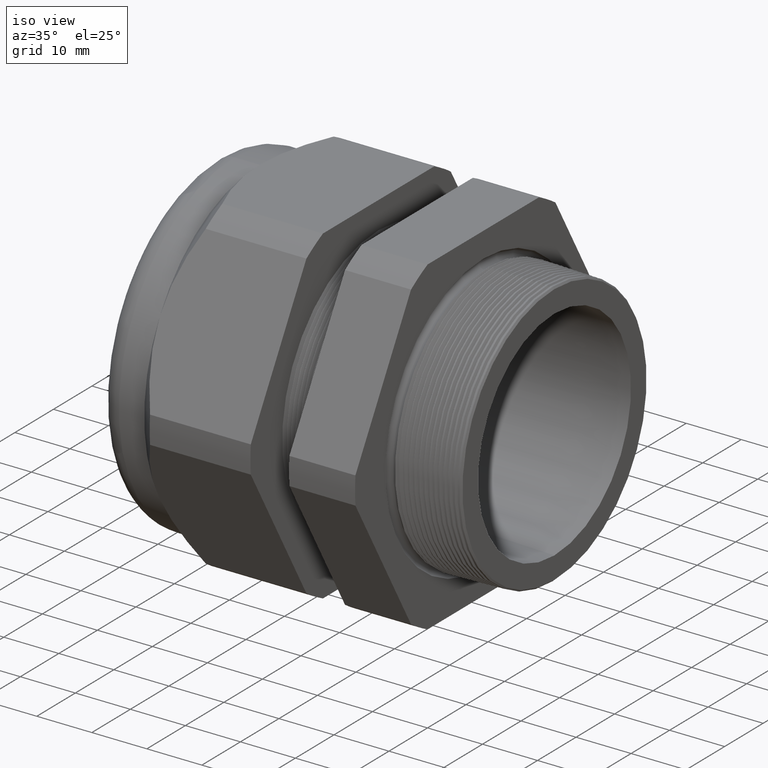
[diagram: clean part render]
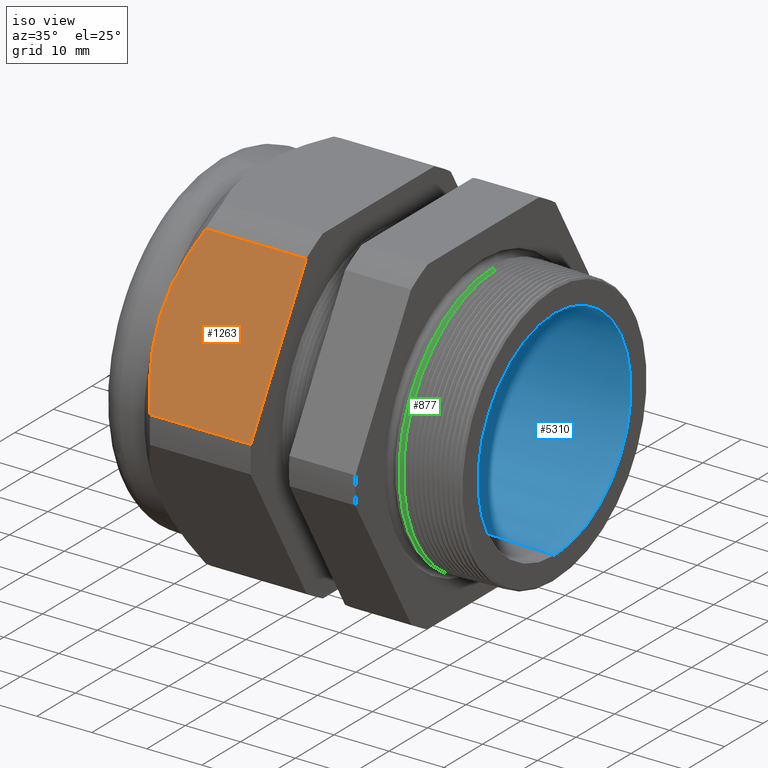
[diagram: same view with three faces highlighted in distinct colors, each labeled with its STEP entity id]
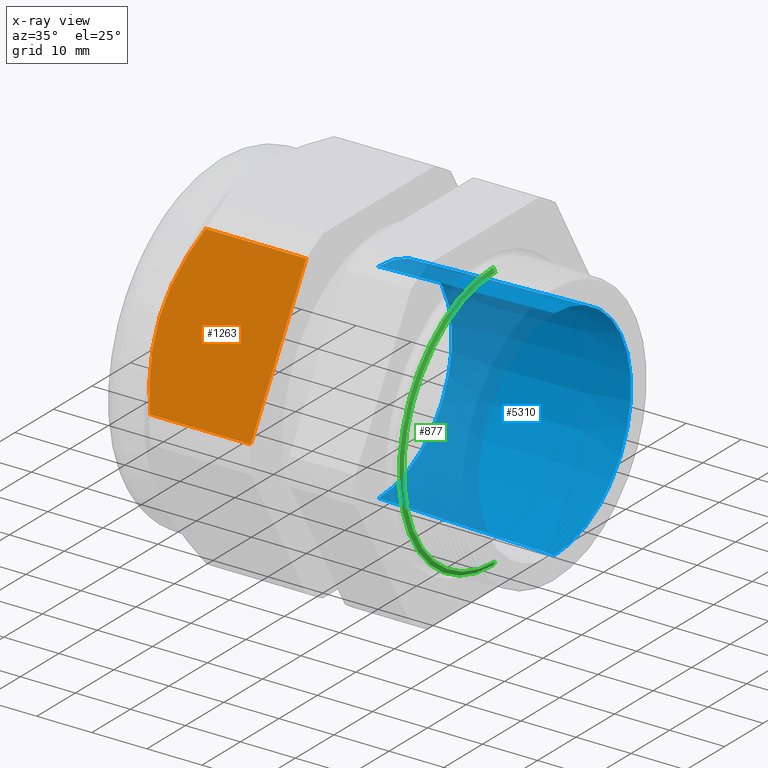
[diagram: x-ray of the same camera — body ghosted, the three highlighted faces saturated]
A machine part, iso view with three faces highlighted in distinct colors.
The next image is the same camera in x-ray (body ghosted, the three faces saturated) — at least one of them is partly hidden behind the body in this view.
Their STEP definitions:

[orange] entity #1263 — the highlighted planar face has unit normal (0, -0.866, 0.5).
#1010 = EDGE_CURVE ( 'NONE', #1265, #1014, #2934, .T. ) ;
#1011 = ORIENTED_EDGE ( 'NONE', *, *, #1010, .F. ) ;
#1013 = ORIENTED_EDGE ( 'NONE', *, *, #1018, .F. ) ;
#1014 = VERTEX_POINT ( 'NONE', #2978 ) ;
#1015 = VERTEX_POINT ( 'NONE', #2977 ) ;
#1016 = ORIENTED_EDGE ( 'NONE', *, *, #1023, .T. ) ;
#1017 = VERTEX_POINT ( 'NONE', #2976 ) ;
#1018 = EDGE_CURVE ( 'NONE', #1014, #1015, #2975, .T. ) ;
#1023 = EDGE_CURVE ( 'NONE', #1017, #1015, #2971, .T. ) ;
#1025 = ORIENTED_EDGE ( 'NONE', *, *, #1026, .T. ) ;
#1026 = EDGE_CURVE ( 'NONE', #1252, #1017, #2961, .T. ) ;
#1027 = ORIENTED_EDGE ( 'NONE', *, *, #1271, .T. ) ;
#1198 = EDGE_LOOP ( 'NONE', ( #1027, #1025, #1016, #1013, #1011 ) ) ;
#1252 = VERTEX_POINT ( 'NONE', #3441 ) ;
#1263 = ADVANCED_FACE ( 'NONE', ( #3415 ), #3414, .T. ) ;
#1265 = VERTEX_POINT ( 'NONE', #3474 ) ;
#1271 = EDGE_CURVE ( 'NONE', #1265, #1252, #3457, .T. ) ;
#2928 = DIRECTION ( 'NONE',  ( 0.0000000000000000000, -0.4999999999999995600, -0.8660254037844389300 ) ) ;
#2929 = VECTOR ( 'NONE', #2928, 39.37007874015748100 ) ;
#2930 = CARTESIAN_POINT ( 'NONE',  ( -1.058802799999999400, -0.7756599764656383300, 1.016517511363835200 ) ) ;
#2934 = LINE ( 'NONE', #2930, #2929 ) ;
#2956 = CARTESIAN_POINT ( 'NONE',  ( -1.851187505985919700, -0.8289513709329576800, 0.9242141085402430000 ) ) ;
#2957 = CARTESIAN_POINT ( 'NONE',  ( -1.818743475994756300, -0.7828851107711118900, 1.004003211655245100 ) ) ;
#2958 = CARTESIAN_POINT ( 'NONE',  ( -1.779491999999999600, -0.7376671049631140500, 1.082323095131642500 ) ) ;
#2961 = B_SPLINE_CURVE_WITH_KNOTS ( 'NONE', 3,
 ( #2958, #2957, #2956, #3016, #3015, #3014, #3013, #3012, #3011, #3010 ),
 .UNSPECIFIED., .F., .F.,
 ( 4, 2, 2, 2, 4 ),
 ( 2.483246384228998700E-007, 0.007410219950490975000, 0.01111520576341725600, 0.01296769866988039200, 0.01482019157634352800 ),
 .UNSPECIFIED. ) ;
#2963 = CARTESIAN_POINT ( 'NONE',  ( -1.779492000000000300, -1.306152847968160800, 0.09767690486835672900 ) ) ;
#2964 = CARTESIAN_POINT ( 'NONE',  ( -1.799142024126190600, -1.283515867254771100, 0.1368853055939044400 ) ) ;
#2965 = CARTESIAN_POINT ( 'NONE',  ( -1.817185162014756100, -1.260539715777235100, 0.1766811673153955700 ) ) ;
#2966 = CARTESIAN_POINT ( 'NONE',  ( -1.849171828712719000, -1.213885783483384500, 0.2574881484212234200 ) ) ;
#2967 = CARTESIAN_POINT ( 'NONE',  ( -1.862989026242973100, -1.190386845346794500, 0.2981895031977150900 ) ) ;
#2968 = CARTESIAN_POINT ( 'NONE',  ( -1.896875206165113300, -1.119292164269853200, 0.4213291029708837700 ) ) ;
#2969 = CARTESIAN_POINT ( 'NONE',  ( -1.909291999999999500, -1.071091697083840400, 0.5048147610856137400 ) ) ;
#2970 = CARTESIAN_POINT ( 'NONE',  ( -1.909291999999999500, -1.021909976465637600, 0.5899999999999993000 ) ) ;
#2971 = B_SPLINE_CURVE_WITH_KNOTS ( 'NONE', 3,
 ( #2970, #2969, #2968, #2967, #2966, #2965, #2964, #2963 ),
 .UNSPECIFIED., .F., .F.,
 ( 4, 2, 2, 4 ),
 ( 0.01482019157634352800, 0.02222508228781098400, 0.02592752764354470200, 0.02962997299927842800 ),
 .UNSPECIFIED. ) ;
#2972 = DIRECTION ( 'NONE',  ( -1.000000000000000000, 0.0000000000000000000, 0.0000000000000000000 ) ) ;
#2973 = VECTOR ( 'NONE', #2972, 39.37007874015748100 ) ;
#2974 = CARTESIAN_POINT ( 'NONE',  ( 0.2000000000000000400, -1.306152847968161000, 0.09767690486835674300 ) ) ;
#2975 = LINE ( 'NONE', #2974, #2973 ) ;
#2976 = CARTESIAN_POINT ( 'NONE',  ( -1.909291999999999500, -1.021909976465637600, 0.5899999999999993000 ) ) ;
#2977 = CARTESIAN_POINT ( 'NONE',  ( -1.779492000000000300, -1.306152847968160800, 0.09767690486835672900 ) ) ;
#2978 = CARTESIAN_POINT ( 'NONE',  ( -1.058802799999999400, -1.306152847968161000, 0.09767690486835674300 ) ) ;
#3010 = CARTESIAN_POINT ( 'NONE',  ( -1.909291999999999500, -1.021909976465637600, 0.5899999999999993000 ) ) ;
#3011 = CARTESIAN_POINT ( 'NONE',  ( -1.909292000000000700, -1.009606109720950100, 0.6113109223313559800 ) ) ;
#3012 = CARTESIAN_POINT ( 'NONE',  ( -1.908513362268125000, -0.9971897060428769300, 0.6328167643490634200 ) ) ;
#3013 = CARTESIAN_POINT ( 'NONE',  ( -1.905420772962690900, -0.9725205596792974000, 0.6755449792301363400 ) ) ;
#3014 = CARTESIAN_POINT ( 'NONE',  ( -1.903116933607496700, -0.9602803817511420500, 0.6967455892953847700 ) ) ;
#3015 = CARTESIAN_POINT ( 'NONE',  ( -1.894069948313096500, -0.9238259417959003800, 0.7598865314593309400 ) ) ;
#3016 = CARTESIAN_POINT ( 'NONE',  ( -1.885190669446346500, -0.8998778565486572600, 0.8013658318515464200 ) ) ;
#3413 = AXIS2_PLACEMENT_3D ( 'NONE', #3477, #3476, #3475 ) ;
#3414 = PLANE ( 'NONE',  #3413 ) ;
#3415 = FACE_OUTER_BOUND ( 'NONE', #1198, .T. ) ;
#3441 = CARTESIAN_POINT ( 'NONE',  ( -1.779491999999999600, -0.7376671049631140500, 1.082323095131642500 ) ) ;
#3454 = DIRECTION ( 'NONE',  ( -1.000000000000000000, 0.0000000000000000000, 0.0000000000000000000 ) ) ;
#3455 = VECTOR ( 'NONE', #3454, 39.37007874015748100 ) ;
#3456 = CARTESIAN_POINT ( 'NONE',  ( 0.2000000000000000400, -0.7376671049631140500, 1.082323095131642500 ) ) ;
#3457 = LINE ( 'NONE', #3456, #3455 ) ;
#3474 = CARTESIAN_POINT ( 'NONE',  ( -1.058802799999999400, -0.7376671049631140500, 1.082323095131642500 ) ) ;
#3475 = DIRECTION ( 'NONE',  ( 0.0000000000000000000, -0.4999999999999995600, -0.8660254037844389300 ) ) ;
#3476 = DIRECTION ( 'NONE',  ( 0.0000000000000000000, -0.8660254037844389300, 0.4999999999999995600 ) ) ;
#3477 = CARTESIAN_POINT ( 'NONE',  ( 0.2000000000000000400, -1.306152847968161000, 0.09767690486835657600 ) ) ;

[blue] entity #5310 — the highlighted conical surface has half-angle 1.458 deg.
#463 = EDGE_CURVE ( 'NONE', #483, #464, #2437, .T. ) ;
#464 = VERTEX_POINT ( 'NONE', #2428 ) ;
#467 = VERTEX_POINT ( 'NONE', #2422 ) ;
#469 = EDGE_CURVE ( 'NONE', #486, #467, #2421, .T. ) ;
#483 = VERTEX_POINT ( 'NONE', #2459 ) ;
#486 = VERTEX_POINT ( 'NONE', #2453 ) ;
#2418 = DIRECTION ( 'NONE',  ( 0.9996762947271695700, 0.0000000000000000000, -0.02544220431796574000 ) ) ;
#2419 = VECTOR ( 'NONE', #2418, 39.37007874015748100 ) ;
#2420 = CARTESIAN_POINT ( 'NONE',  ( -1.058802799999999400, 0.0000000000000000000, -0.7500000000000001100 ) ) ;
#2421 = LINE ( 'NONE', #2420, #2419 ) ;
#2422 = CARTESIAN_POINT ( 'NONE',  ( 0.2000000000000000400, 0.0000000000000000000, -0.7820370886081360300 ) ) ;
#2428 = CARTESIAN_POINT ( 'NONE',  ( 0.2000000000000000400, 9.577192173784689300E-017, 0.7820370886081360300 ) ) ;
#2429 = DIRECTION ( 'NONE',  ( 0.9996762947271695700, 3.115771408124971500E-018, 0.02544220431796574000 ) ) ;
#2430 = VECTOR ( 'NONE', #2429, 39.37007874015748100 ) ;
#2431 = CARTESIAN_POINT ( 'NONE',  ( -1.058802799999999400, 9.184850993605150900E-017, 0.7500000000000001100 ) ) ;
#2437 = LINE ( 'NONE', #2431, #2430 ) ;
#2453 = CARTESIAN_POINT ( 'NONE',  ( -1.058802799999999400, 0.0000000000000000000, -0.7500000000000001100 ) ) ;
#2459 = CARTESIAN_POINT ( 'NONE',  ( -1.058802799999999400, 9.381021583694917600E-017, 0.7500000000000001100 ) ) ;
#4791 = DIRECTION ( 'NONE',  ( 1.000000000000000000, 0.0000000000000000000, 0.0000000000000000000 ) ) ;
#4792 = CARTESIAN_POINT ( 'NONE',  ( 0.2000000000000000400, 0.0000000000000000000, 0.0000000000000000000 ) ) ;
#4793 = AXIS2_PLACEMENT_3D ( 'NONE', #4792, #4791, #4853 ) ;
#4794 = CIRCLE ( 'NONE', #4793, 0.7820370886081360300 ) ;
#4853 = DIRECTION ( 'NONE',  ( 0.0000000000000000000, 0.0000000000000000000, -1.000000000000000000 ) ) ;
#4952 = DIRECTION ( 'NONE',  ( 0.0000000000000000000, 0.0000000000000000000, -1.000000000000000000 ) ) ;
#4953 = DIRECTION ( 'NONE',  ( 1.000000000000000000, 0.0000000000000000000, 0.0000000000000000000 ) ) ;
#4954 = CARTESIAN_POINT ( 'NONE',  ( -1.058802799999999400, 0.0000000000000000000, 0.0000000000000000000 ) ) ;
#4955 = AXIS2_PLACEMENT_3D ( 'NONE', #4954, #4953, #4952 ) ;
#4957 = CONICAL_SURFACE ( 'NONE', #4955, 0.7500000000000001100, 0.02544494993204031400 ) ;
#4958 = FACE_OUTER_BOUND ( 'NONE', #5211, .T. ) ;
#4959 = DIRECTION ( 'NONE',  ( 0.0000000000000000000, 0.0000000000000000000, -1.000000000000000000 ) ) ;
#4960 = DIRECTION ( 'NONE',  ( 1.000000000000000000, 0.0000000000000000000, 0.0000000000000000000 ) ) ;
#4961 = AXIS2_PLACEMENT_3D ( 'NONE', #4968, #4960, #4959 ) ;
#4962 = CIRCLE ( 'NONE', #4961, 0.7500000000000001100 ) ;
#4968 = CARTESIAN_POINT ( 'NONE',  ( -1.058802799999999400, 0.0000000000000000000, 0.0000000000000000000 ) ) ;
#5211 = EDGE_LOOP ( 'NONE', ( #5308, #5311, #5306, #5301 ) ) ;
#5220 = EDGE_CURVE ( 'NONE', #467, #464, #4794, .T. ) ;
#5301 = ORIENTED_EDGE ( 'NONE', *, *, #5220, .T. ) ;
#5306 = ORIENTED_EDGE ( 'NONE', *, *, #469, .T. ) ;
#5308 = ORIENTED_EDGE ( 'NONE', *, *, #463, .F. ) ;
#5309 = EDGE_CURVE ( 'NONE', #486, #483, #4962, .T. ) ;
#5310 = ADVANCED_FACE ( 'NONE', ( #4958 ), #4957, .F. ) ;
#5311 = ORIENTED_EDGE ( 'NONE', *, *, #5309, .F. ) ;

[green] entity #877 — the highlighted conical surface has half-angle 61.5 deg.
#76 = VERTEX_POINT ( 'NONE', #599 ) ;
#599 = CARTESIAN_POINT ( 'NONE',  ( -0.2389904000387093300, 1.180017936834980300E-016, -0.9635324567931725600 ) ) ;
#870 = ORIENTED_EDGE ( 'NONE', *, *, #1466, .T. ) ;
#871 = ORIENTED_EDGE ( 'NONE', *, *, #1285, .T. ) ;
#873 = ORIENTED_EDGE ( 'NONE', *, *, #1551, .F. ) ;
#874 = EDGE_CURVE ( 'NONE', #1589, #1427, #2705, .T. ) ;
#875 = ORIENTED_EDGE ( 'NONE', *, *, #874, .F. ) ;
#876 = EDGE_LOOP ( 'NONE', ( #873, #875, #870, #871 ) ) ;
#877 = ADVANCED_FACE ( 'NONE', ( #2765 ), #2764, .T. ) ;
#1285 = EDGE_CURVE ( 'NONE', #1493, #76, #3494, .T. ) ;
#1427 = VERTEX_POINT ( 'NONE', #3812 ) ;
#1466 = EDGE_CURVE ( 'NONE', #1589, #1493, #3871, .T. ) ;
#1493 = VERTEX_POINT ( 'NONE', #3948 ) ;
#1551 = EDGE_CURVE ( 'NONE', #1427, #76, #4033, .T. ) ;
#1589 = VERTEX_POINT ( 'NONE', #4087 ) ;
#2702 = DIRECTION ( 'NONE',  ( 0.0000000000000000000, 0.0000000000000000000, -1.000000000000000000 ) ) ;
#2703 = DIRECTION ( 'NONE',  ( 1.000000000000000000, 0.0000000000000000000, 0.0000000000000000000 ) ) ;
#2704 = AXIS2_PLACEMENT_3D ( 'NONE', #2709, #2703, #2702 ) ;
#2705 = CIRCLE ( 'NONE', #2704, 0.9349487908145880400 ) ;
#2709 = CARTESIAN_POINT ( 'NONE',  ( -0.2234707356790753600, 0.0000000000000000000, 0.0000000000000000000 ) ) ;
#2760 = DIRECTION ( 'NONE',  ( 0.0000000000000000000, 0.0000000000000000000, 1.000000000000000000 ) ) ;
#2761 = DIRECTION ( 'NONE',  ( -1.000000000000000000, 0.0000000000000000000, 0.0000000000000000000 ) ) ;
#2762 = CARTESIAN_POINT ( 'NONE',  ( -0.2399999999999999600, 0.0000000000000000000, 0.0000000000000000000 ) ) ;
#2763 = AXIS2_PLACEMENT_3D ( 'NONE', #2762, #2761, #2760 ) ;
#2764 = CONICAL_SURFACE ( 'NONE', #2763, 0.9653919086084179500, 1.073377489976503400 ) ;
#2765 = FACE_OUTER_BOUND ( 'NONE', #876, .T. ) ;
#3490 = DIRECTION ( 'NONE',  ( 0.0000000000000000000, 0.0000000000000000000, 1.000000000000000000 ) ) ;
#3491 = DIRECTION ( 'NONE',  ( 1.000000000000000000, 0.0000000000000000000, 0.0000000000000000000 ) ) ;
#3492 = CARTESIAN_POINT ( 'NONE',  ( -0.2389904000387093300, 0.0000000000000000000, 0.0000000000000000000 ) ) ;
#3493 = AXIS2_PLACEMENT_3D ( 'NONE', #3492, #3491, #3490 ) ;
#3494 = CIRCLE ( 'NONE', #3493, 0.9635324567931725600 ) ;
#3812 = CARTESIAN_POINT ( 'NONE',  ( -0.2234707356790753600, 1.162484491562058800E-016, -0.9349487908145880400 ) ) ;
#3868 = DIRECTION ( 'NONE',  ( -0.4771587602596165100, 0.0000000000000000000, 0.8788171126619609400 ) ) ;
#3869 = VECTOR ( 'NONE', #3868, 39.37007874015748100 ) ;
#3870 = CARTESIAN_POINT ( 'NONE',  ( -0.2399999999999999600, 0.0000000000000000000, 0.9653919086084179500 ) ) ;
#3871 = LINE ( 'NONE', #3870, #3869 ) ;
#3948 = CARTESIAN_POINT ( 'NONE',  ( -0.2389904000387093300, 0.0000000000000000000, 0.9635324567931725600 ) ) ;
#4030 = DIRECTION ( 'NONE',  ( -0.4771587602596165100, 1.076240564057389400E-016, -0.8788171126619609400 ) ) ;
#4031 = VECTOR ( 'NONE', #4030, 39.37007874015748100 ) ;
#4032 = CARTESIAN_POINT ( 'NONE',  ( -0.2399999999999999600, 1.182264110800053100E-016, -0.9653919086084179500 ) ) ;
#4033 = LINE ( 'NONE', #4032, #4031 ) ;
#4087 = CARTESIAN_POINT ( 'NONE',  ( -0.2234707356790753600, 0.0000000000000000000, 0.9349487908145880400 ) ) ;